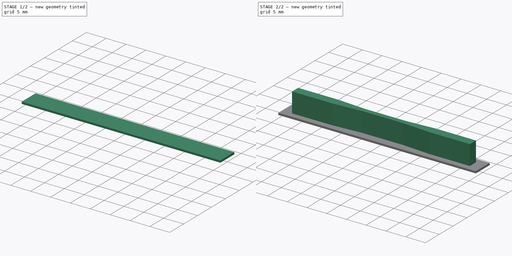
[diagram: build sequence overview — one tinted view per stage of 2, left to right]
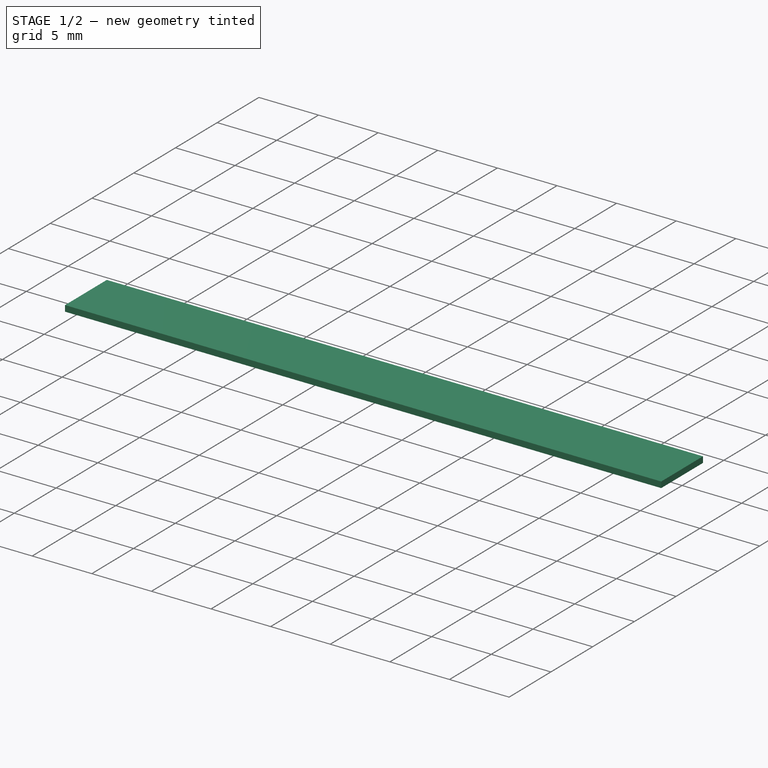
[diagram: stage 1 of 2 — iso view after this stage's code; geometry added in this stage tinted green]
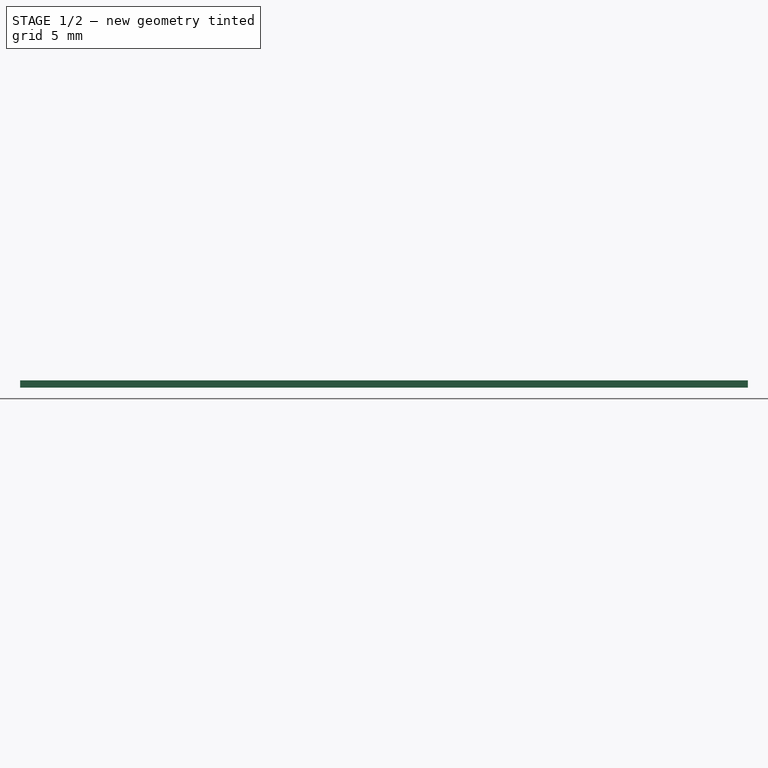
[diagram: stage 1 of 2 — front view after this stage's code; geometry added in this stage tinted green]
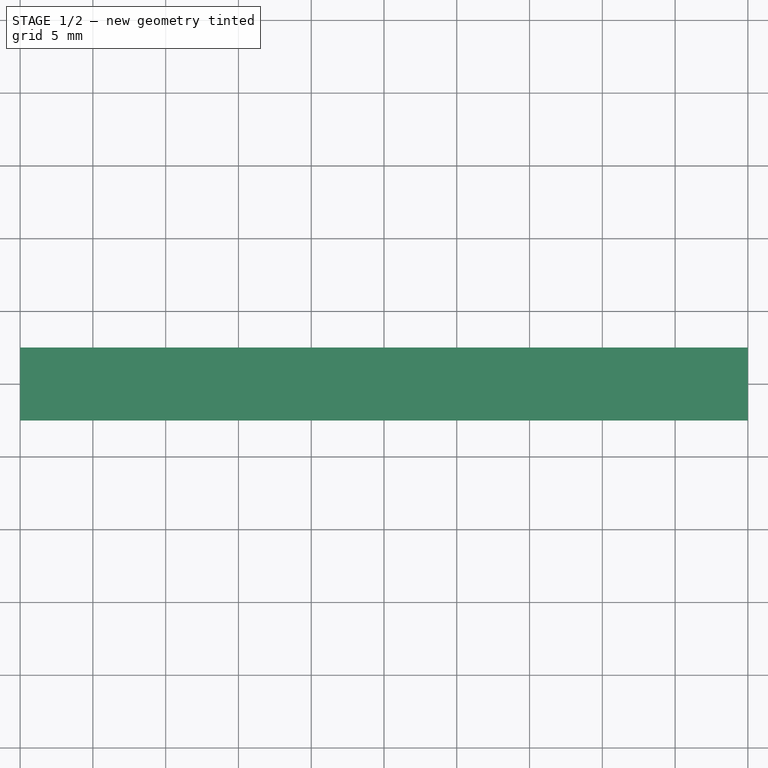
[diagram: stage 1 of 2 — top view after this stage's code; geometry added in this stage tinted green]
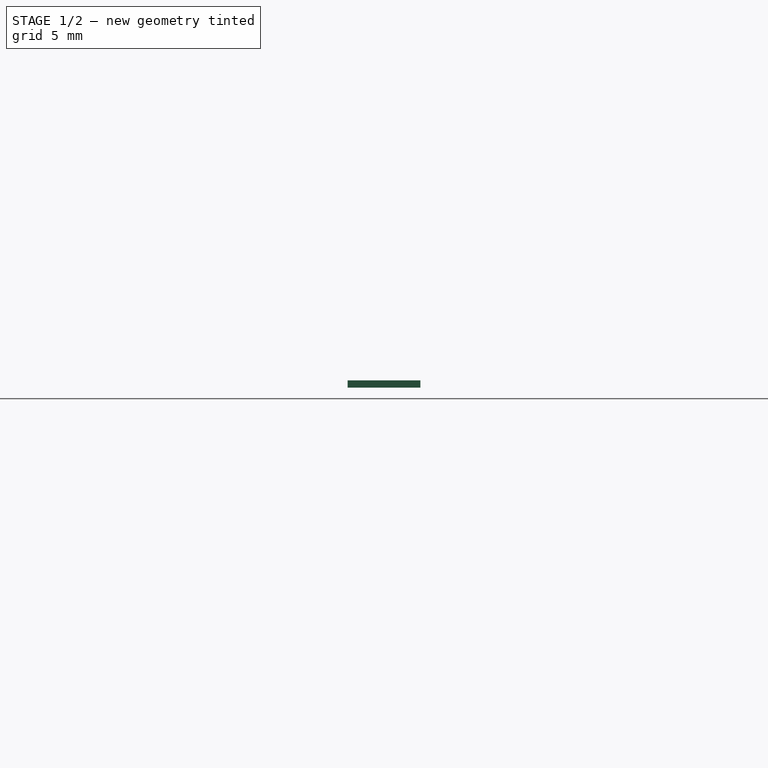
[diagram: stage 1 of 2 — right view after this stage's code; geometry added in this stage tinted green]
FCSTD DOCUMENT  (FreeCAD 0.20R25065 (Git))
Label: perimeter_overlap-perimeter_overlap.stl
License: All rights reserved
LicenseURL: http://en.wikipedia.org/wiki/All_rights_reserved
objects: Sketcher::SketchObject×2, PartDesign::Pad×2, PartDesign::Body×1
note: 7 computed .brp shape members not serialized (recipe doc carries the construction recipe); baked Part::Feature solids carry a one-line shape summary decoded from their .brp

FEATURE [Sketcher::SketchObject] Sketch
  FullyConstrained = true
  MapMode = 5
  Support = -> [XY_Plane]
  sketch-geometry (4):
    g0: LineSegment StartX=-25 StartY=2.5 StartZ=0 EndX=25 EndY=2.5 EndZ=0
    g1: LineSegment StartX=25 StartY=2.5 StartZ=0 EndX=25 EndY=-2.5 EndZ=0
    g2: LineSegment StartX=25 StartY=-2.5 StartZ=0 EndX=-25 EndY=-2.5 EndZ=0
    g3: LineSegment StartX=-25 StartY=-2.5 StartZ=0 EndX=-25 EndY=2.5 EndZ=0
  constraints (10):
    c: Coincident(g0,g1)
    c: Coincident(g1,g2)
    c: Coincident(g2,g3)
    c: Coincident(g3,g0)
    c: Horizontal(g2)
    c: Vertical(g3)
    c: DistanceX(g0,g0) = 50
    c: DistanceY(g3,g3) = 5
    c: Symmetric(g0,g0,g-2)
    c: Symmetric(g0,g1,g-1)
FEATURE [PartDesign::Pad] Pad
  Direction = (0,0,1)
  Length = 0.5
  Length2 = 100
  Profile = -> Sketch
  Type = 0
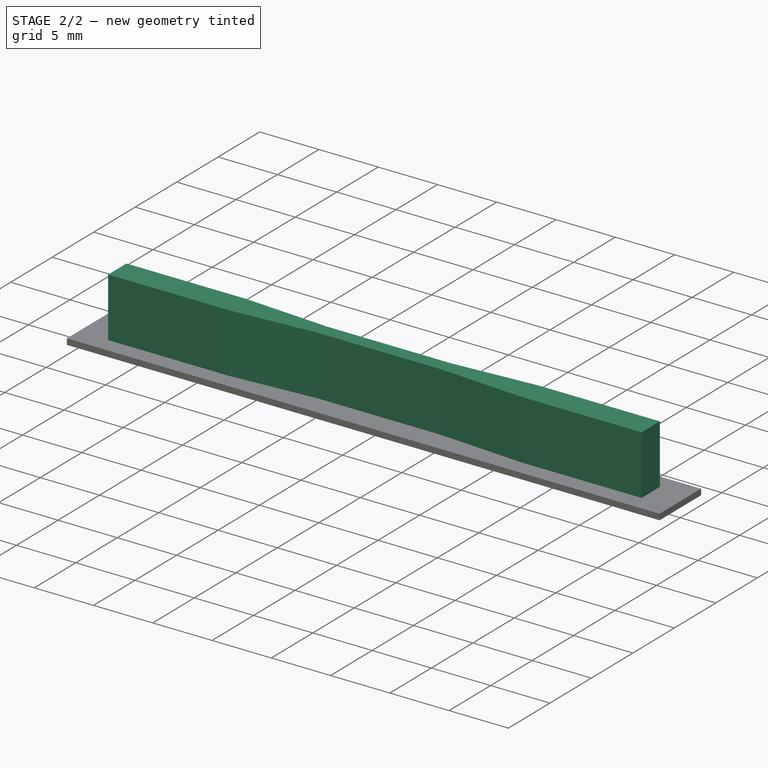
[diagram: stage 2 of 2 — iso view after this stage's code; geometry added in this stage tinted green]
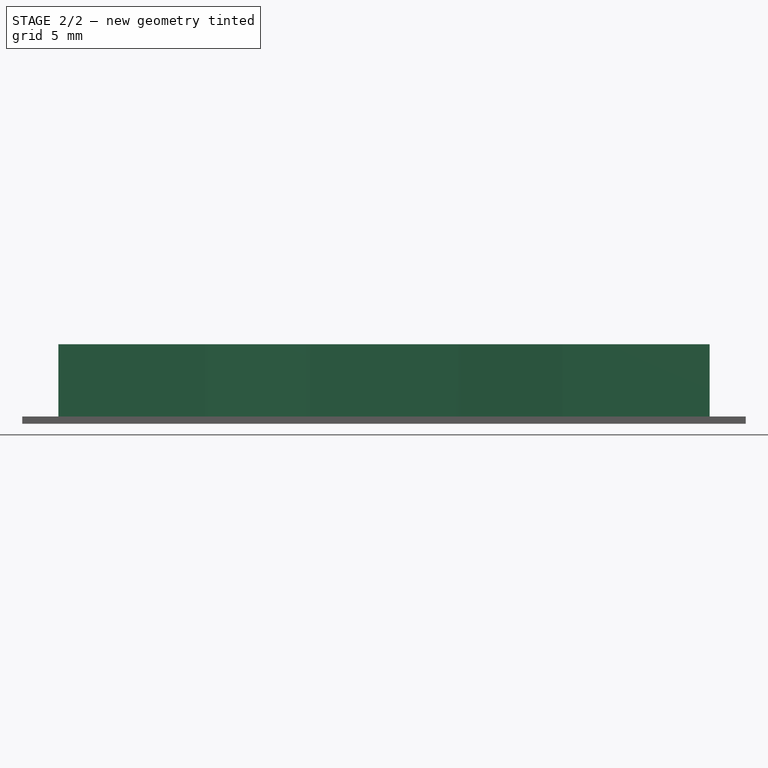
[diagram: stage 2 of 2 — front view after this stage's code; geometry added in this stage tinted green]
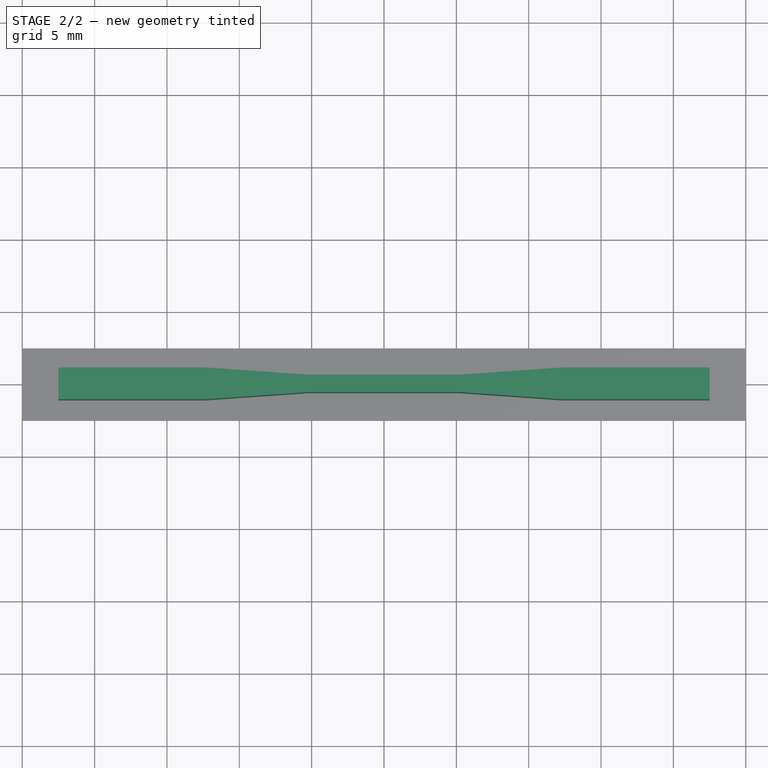
[diagram: stage 2 of 2 — top view after this stage's code; geometry added in this stage tinted green]
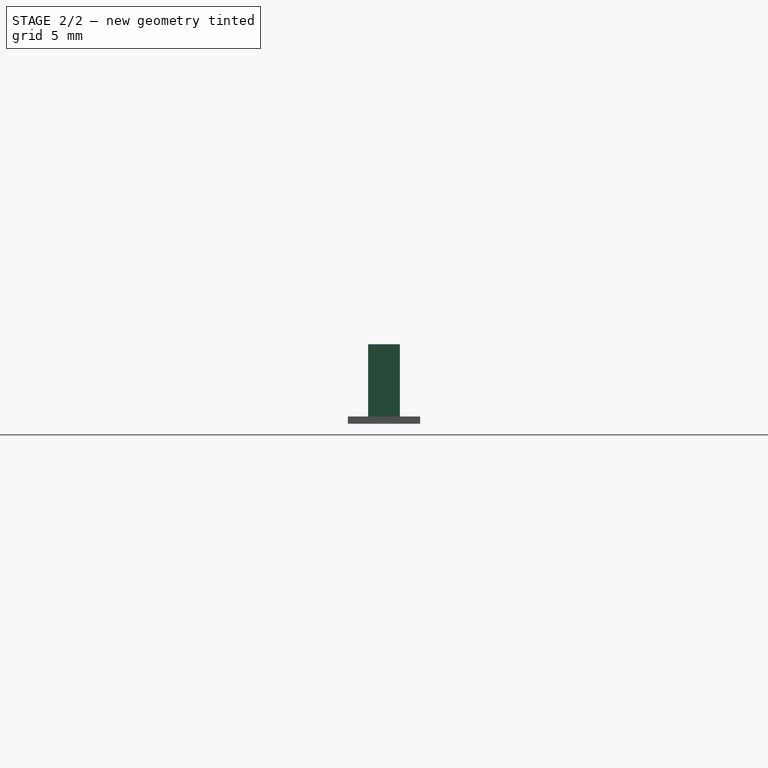
[diagram: stage 2 of 2 — right view after this stage's code; geometry added in this stage tinted green]
FEATURE [Sketcher::SketchObject] Sketch001
  FullyConstrained = true
  MapMode = 5
  Placement = pos=(0,0,0.5) rot=(0,0,1;0rad)
  Support = -> [Pad]
  sketch-geometry (20):
    g0: LineSegment StartX=-12.5 StartY=1.1 StartZ=0 EndX=-22.5 EndY=1.1 EndZ=0
    g1: LineSegment StartX=-22.5 StartY=1.1 StartZ=0 EndX=-22.5 EndY=-1.1 EndZ=0
    g2: LineSegment StartX=-22.5 StartY=-1.1 StartZ=0 EndX=-12.5 EndY=-1.1 EndZ=0
    g3: LineSegment StartX=22.5 StartY=-1.1 StartZ=0 EndX=22.5 EndY=1.1 EndZ=0
    g4: LineSegment StartX=-5 StartY=0.6 StartZ=0 EndX=5 EndY=0.6 EndZ=0
    g5: LineSegment StartX=5 StartY=-0.6 StartZ=0 EndX=-5 EndY=-0.6 EndZ=0
    g6: LineSegment StartX=5.34876 StartY=0.612178 StartZ=0 EndX=12.1512 EndY=1.08782 EndZ=0
    g7: LineSegment StartX=-5.34876 StartY=0.612178 StartZ=0 EndX=-12.1512 EndY=1.08782 EndZ=0
    g8: LineSegment StartX=-5.34876 StartY=-0.612178 StartZ=0 EndX=-12.1512 EndY=-1.08782 EndZ=0
    g9: LineSegment StartX=5.34876 StartY=-0.612178 StartZ=0 EndX=12.1512 EndY=-1.08782 EndZ=0
    g10: ArcOfCircle CenterX=-12.5 CenterY=-3.9 CenterZ=0 NormalX=0 NormalY=0 NormalZ=1 AngleXU=0 Radius=5 StartAngle=1.50099 EndAngle=1.5708
    g11: ArcOfCircle CenterX=-12.5 CenterY=3.9 CenterZ=0 NormalX=0 NormalY=0 NormalZ=1 AngleXU=0 Radius=5 StartAngle=4.71239 EndAngle=4.7822
    g12: LineSegment StartX=12.5 StartY=-1.1 StartZ=0 EndX=22.5 EndY=-1.1 EndZ=0
    g13: LineSegment StartX=22.5 StartY=1.1 StartZ=0 EndX=12.5 EndY=1.1 EndZ=0
    g14: ArcOfCircle CenterX=12.5 CenterY=-3.9 CenterZ=0 NormalX=0 NormalY=0 NormalZ=1 AngleXU=0 Radius=5 StartAngle=1.5708 EndAngle=1.6406
    g15: ArcOfCircle CenterX=12.5 CenterY=3.9 CenterZ=0 NormalX=0 NormalY=0 NormalZ=1 AngleXU=0 Radius=5 StartAngle=4.64258 EndAngle=4.71239
    g16: ArcOfCircle CenterX=-5 CenterY=-5.6 CenterZ=0 NormalX=0 NormalY=0 NormalZ=1 AngleXU=0 Radius=5 StartAngle=1.5708 EndAngle=1.6406
    g17: ArcOfCircle CenterX=-5 CenterY=5.6 CenterZ=0 NormalX=0 NormalY=0 NormalZ=1 AngleXU=0 Radius=5 StartAngle=4.64258 EndAngle=4.71239
    g18: ArcOfCircle CenterX=5 CenterY=5.6 CenterZ=0 NormalX=0 NormalY=0 NormalZ=1 AngleXU=0 Radius=5 StartAngle=4.71239 EndAngle=4.7822
    g19: ArcOfCircle CenterX=5 CenterY=-5.6 CenterZ=0 NormalX=0 NormalY=0 NormalZ=1 AngleXU=0 Radius=5 StartAngle=1.50099 EndAngle=1.5708
  constraints (44):
    c: Coincident(g0,g1)
    c: Coincident(g1,g2)
    c: Horizontal(g0)
    c: Horizontal(g2)
    c: Vertical(g1)
    c: Tangent(g7,g10) = -1.5708
    c: Tangent(g0,g10) = -1.5708
    c: Tangent(g8,g11) = 1.5708
    c: Tangent(g2,g11) = -1.5708
    c: Coincident(g12,g3)
    c: Horizontal(g12)
    c: Coincident(g13,g3)
    c: Tangent(g6,g14) = 1.5708
    c: Tangent(g13,g14) = -1.5708
    c: Tangent(g12,g15) = -1.5708
    c: Tangent(g9,g15) = -1.5708
    c: Tangent(g8,g16) = -1.5708
    c: Tangent(g5,g16) = -1.5708
    c: Tangent(g4,g17) = -1.5708
    c: Tangent(g7,g17) = 1.5708
    c: Tangent(g4,g18) = -1.5708
    c: Tangent(g6,g18) = -1.5708
    c: Tangent(g5,g19) = -1.5708
    c: Tangent(g9,g19) = 1.5708
    c: Symmetric(g3,g0,g-2)
    c: Symmetric(g4,g4,g-2)
    c: Symmetric(g4,g5,g-1)
    c: Symmetric(g3,g3,g-1)
    c: Symmetric(g12,g13,g-1)
    c: Symmetric(g2,g0,g-1)
    c: Equal(g13,g0)
    c: Symmetric(g5,g4,g-1)
    c: Symmetric(g6,g9,g-1)
    c: Equal(g15,g11)
    c: Equal(g19,g16)
    c: Distance(g1) = 2.2
    c: DistanceY(g5,g4) = 1.2
    c: Radius(g17) = 5
    c: Radius(g14) = 5
    c: DistanceX(g0,g3) = 45
    c: DistanceX(g5,g5) = 10
    c: DistanceX(g13,g13) = 10
    c: Equal(g17,g16)
    c: Equal(g11,g10)
FEATURE [PartDesign::Pad] Pad001
  BaseFeature = -> Pad
  Direction = (0,0,1)
  Length = 5
  Length2 = 100
  Profile = -> Sketch001
  Type = 0
FEATURE [PartDesign::Body] Body  label="perimeter_overlap"
  Group = -> [Sketch,Pad,Sketch001,Pad001]
  Origin = -> Origin
  Tip = -> Pad001
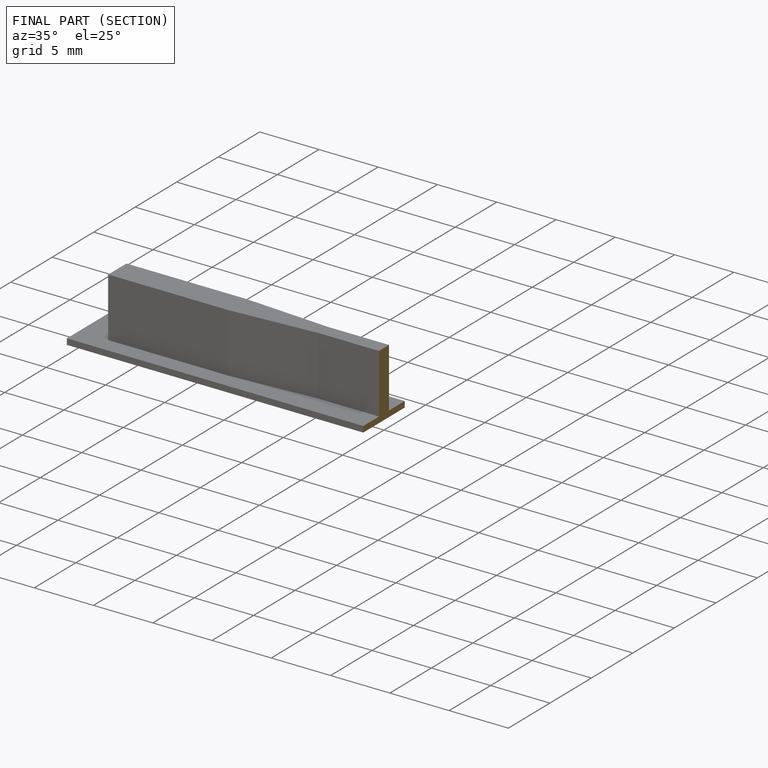
[diagram: finished part — half-section view (interior)]
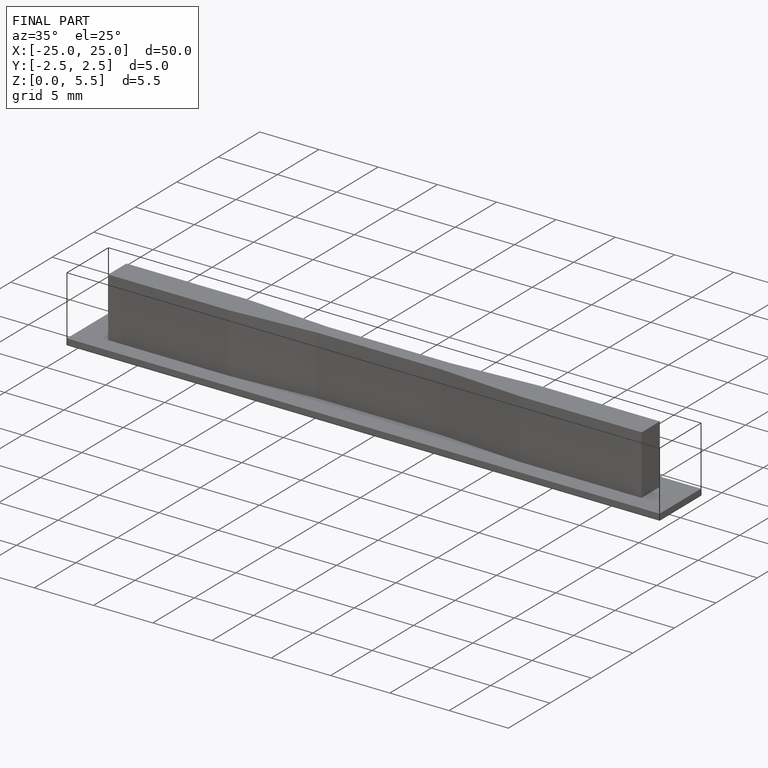
[diagram: finished part — iso view with bounding-box wireframe]
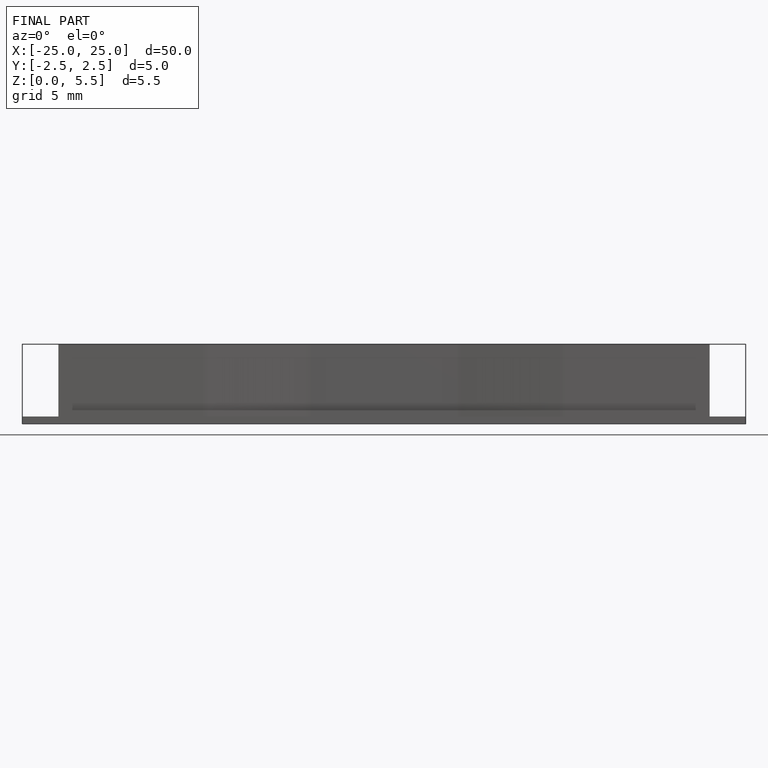
[diagram: finished part — front view with bounding-box wireframe]
